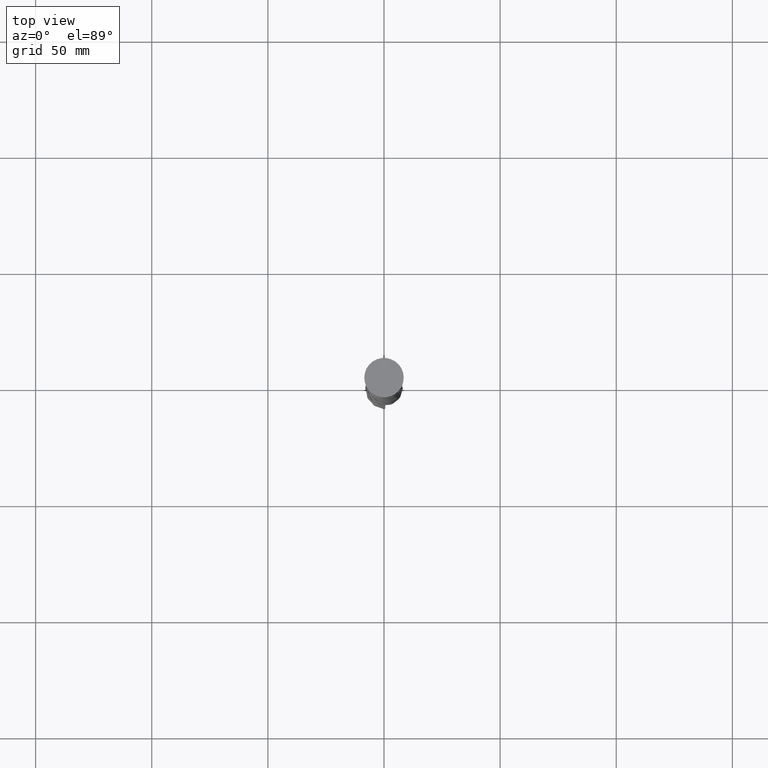
[diagram: clean part render]
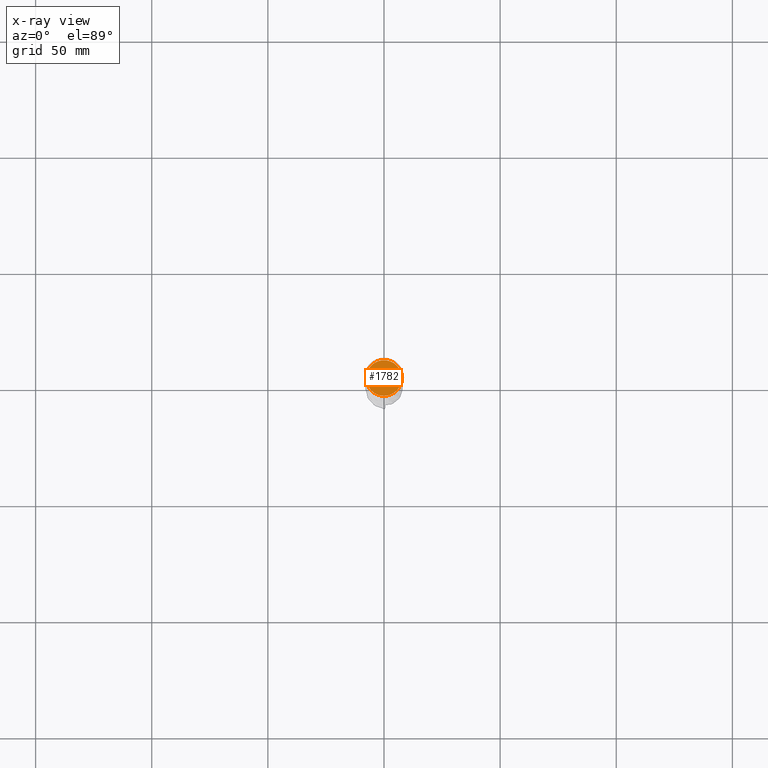
[diagram: x-ray — body ghosted, one internal face saturated and labeled with its STEP entity id]
A machine part, top view, then the same camera in x-ray: the body is ghosted and one INTERNAL B-rep face — a face not visible from any outside direction — is saturated and labeled: STEP entity #1782.
In plain terms, the highlighted planar face has unit normal (0, 0, -1).
Its self-contained STEP definition (entity closure, byte-faithful):
#24 = CARTESIAN_POINT ( 'NONE',  ( 0.000000000000000000, 0.000000000000000000, -12.00000000000000000 ) ) ;
#125 = CIRCLE ( 'NONE', #578, 7.700000000000001954 ) ;
#340 = CARTESIAN_POINT ( 'NONE',  ( 0.000000000000000000, 0.000000000000000000, -12.00000000000000000 ) ) ;
#578 = AXIS2_PLACEMENT_3D ( 'NONE', #340, #4080, #3138 ) ;
#977 = PLANE ( 'NONE',  #3435 ) ;
#1285 = DIRECTION ( 'NONE',  ( -1.000000000000000000, 0.000000000000000000, -0.000000000000000000 ) ) ;
#1321 = CARTESIAN_POINT ( 'NONE',  ( 0.000000000000000000, 0.000000000000000000, -12.00000000000000000 ) ) ;
#1403 = VERTEX_POINT ( 'NONE', #2524 ) ;
#1469 = CARTESIAN_POINT ( 'NONE',  ( -7.700000000000001954, 0.000000000000000000, -12.00000000000000000 ) ) ;
#1689 = EDGE_CURVE ( 'NONE', #1976, #1403, #3233, .T. ) ;
#1701 = EDGE_LOOP ( 'NONE', ( #3770, #1784 ) ) ;
#1758 = EDGE_CURVE ( 'NONE', #1403, #1976, #125, .T. ) ;
#1782 = ADVANCED_FACE ( 'NONE', ( #3199 ), #977, .F. ) ;
#1784 = ORIENTED_EDGE ( 'NONE', *, *, #1758, .T. ) ;
#1865 = DIRECTION ( 'NONE',  ( -1.000000000000000000, 0.000000000000000000, 0.000000000000000000 ) ) ;
#1908 = AXIS2_PLACEMENT_3D ( 'NONE', #1321, #3444, #1865 ) ;
#1976 = VERTEX_POINT ( 'NONE', #1469 ) ;
#2524 = CARTESIAN_POINT ( 'NONE',  ( 7.700000000000001954, 9.613477373306725302E-16, -12.00000000000000000 ) ) ;
#2537 = DIRECTION ( 'NONE',  ( 0.000000000000000000, 0.000000000000000000, -1.000000000000000000 ) ) ;
#3138 = DIRECTION ( 'NONE',  ( -1.000000000000000000, 0.000000000000000000, 0.000000000000000000 ) ) ;
#3199 = FACE_OUTER_BOUND ( 'NONE', #1701, .T. ) ;
#3233 = CIRCLE ( 'NONE', #1908, 7.700000000000001954 ) ;
#3435 = AXIS2_PLACEMENT_3D ( 'NONE', #24, #2537, #1285 ) ;
#3444 = DIRECTION ( 'NONE',  ( -0.000000000000000000, -0.000000000000000000, 1.000000000000000000 ) ) ;
#3770 = ORIENTED_EDGE ( 'NONE', *, *, #1689, .T. ) ;
#4080 = DIRECTION ( 'NONE',  ( -0.000000000000000000, -0.000000000000000000, 1.000000000000000000 ) ) ;